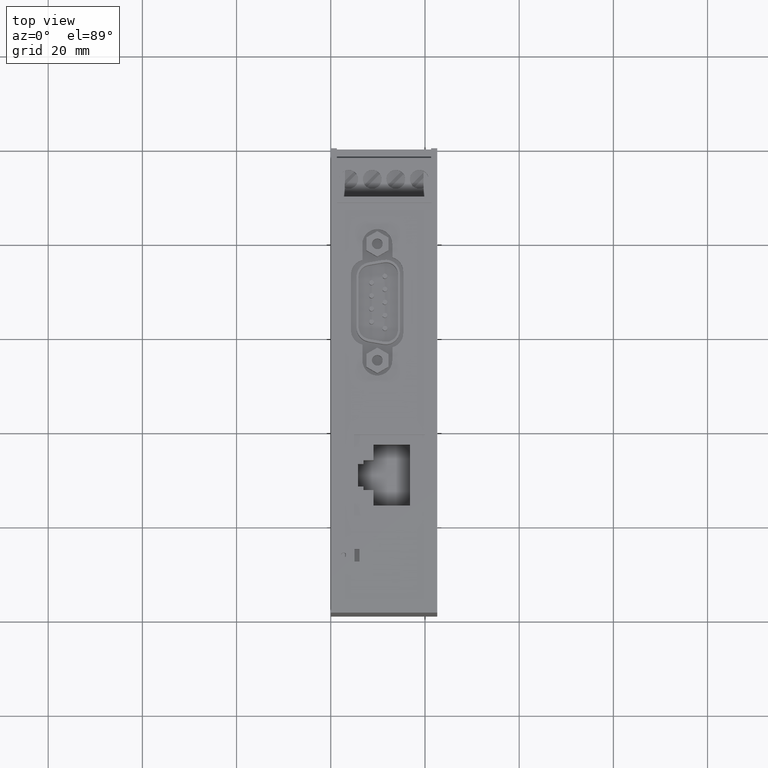
[diagram: clean part render]
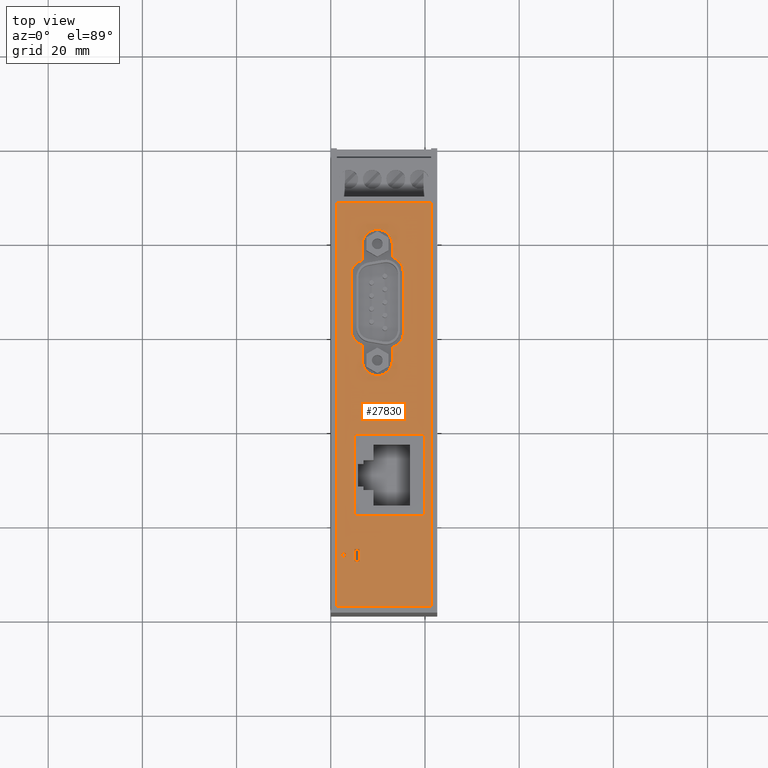
[diagram: same view with one face highlighted and labeled with its STEP entity id]
A machine part, top view. The second image highlights one B-rep face of the part: STEP entity #27830.
In plain terms, the highlighted planar face has unit normal (-0, 0, 1).
Its self-contained STEP definition (entity closure, byte-faithful):
#25570=CARTESIAN_POINT('',(-22.8499999999428,106.799999999976,11.3));
#25580=DIRECTION('',(7.38964445188328E-13,1.,-8.76330016597908E-25));
#25590=DIRECTION('',(1.,-7.38964445188328E-13,-0.));
#25600=AXIS2_PLACEMENT_3D('',#25570,#25580,#25590);
#25610=PLANE('',#25600);
#25620=CARTESIAN_POINT('',(24.,106.799999999941,4.91460000004642));
#25630=DIRECTION('',(1.,-7.38964445188328E-13,-0.));
#25640=VECTOR('',#25630,1.);
#25650=LINE('',#25620,#25640);
#25660=CARTESIAN_POINT('',(-46.415400000017,106.799999999993,
4.91460000004642));
#25670=VERTEX_POINT('',#25660);
#25680=CARTESIAN_POINT('',(-29.215400000017,106.799999999981,
4.91460000004642));
#25690=VERTEX_POINT('',#25680);
#25700=EDGE_CURVE('',#25670,#25690,#25650,.T.);
#25710=ORIENTED_EDGE('',*,*,#25700,.T.);
#25720=CARTESIAN_POINT('',(-46.415400000017,106.799999999993,0.));
#25730=DIRECTION('',(-6.47623918906154E-37,-8.76330016597908E-25,-1.));
#25740=VECTOR('',#25730,1.);
#25750=LINE('',#25720,#25740);
#25760=CARTESIAN_POINT('',(-46.415400000017,106.799999999993,
19.9146000000464));
#25770=VERTEX_POINT('',#25760);
#25780=EDGE_CURVE('',#25770,#25670,#25750,.T.);
#25790=ORIENTED_EDGE('',*,*,#25780,.T.);
#25800=CARTESIAN_POINT('',(24.,106.799999999941,19.9146000000464));
#25810=DIRECTION('',(-1.,7.38964445188328E-13,0.));
#25820=VECTOR('',#25810,1.);
#25830=LINE('',#25800,#25820);
#25840=CARTESIAN_POINT('',(-29.215400000017,106.799999999981,
19.9146000000464));
#25850=VERTEX_POINT('',#25840);
#25860=EDGE_CURVE('',#25850,#25770,#25830,.T.);
#25870=ORIENTED_EDGE('',*,*,#25860,.T.);
#25880=CARTESIAN_POINT('',(-29.215400000017,106.799999999981,0.));
#25890=DIRECTION('',(6.47623918906154E-37,8.76330016597908E-25,1.));
#25900=VECTOR('',#25890,1.);
#25910=LINE('',#25880,#25900);
#25920=EDGE_CURVE('',#25690,#25850,#25910,.T.);
#25930=ORIENTED_EDGE('',*,*,#25920,.T.);
#25940=EDGE_LOOP('',(#25930,#25870,#25790,#25710));
#25950=FACE_BOUND('',#25940,.T.);
#25960=CARTESIAN_POINT('',(-56.1333999999013,106.800000000001,0.));
#25970=DIRECTION('',(-6.62562871323012E-18,-8.76325120071037E-25,-1.));
#25980=VECTOR('',#25970,1.);
#25990=LINE('',#25960,#25980);
#26000=CARTESIAN_POINT('',(-56.1333999999013,106.800000000001,
6.05660000001346));
#26010=VERTEX_POINT('',#26000);
#26020=CARTESIAN_POINT('',(-56.1333999999013,106.800000000001,
5.05660000001347));
#26030=VERTEX_POINT('',#26020);
#26040=EDGE_CURVE('',#26010,#26030,#25990,.T.);
#26050=ORIENTED_EDGE('',*,*,#26040,.T.);
#26060=CARTESIAN_POINT('',(24.,106.799999999941,6.05660000001346));
#26070=DIRECTION('',(-1.,7.38964445188328E-13,6.62562860080833E-18));
#26080=VECTOR('',#26070,1.);
#26090=LINE('',#26060,#26080);
#26100=CARTESIAN_POINT('',(-53.5333999999013,106.799999999999,
6.05660000001346));
#26110=VERTEX_POINT('',#26100);
#26120=EDGE_CURVE('',#26110,#26010,#26090,.T.);
#26130=ORIENTED_EDGE('',*,*,#26120,.T.);
#26140=CARTESIAN_POINT('',(-53.5333999999013,106.799999999999,0.));
#26150=DIRECTION('',(6.62562871323012E-18,8.76325120071037E-25,1.));
#26160=VECTOR('',#26150,1.);
#26170=LINE('',#26140,#26160);
#26180=CARTESIAN_POINT('',(-53.5333999999013,106.799999999999,
5.05660000001347));
#26190=VERTEX_POINT('',#26180);
#26200=EDGE_CURVE('',#26190,#26110,#26170,.T.);
#26210=ORIENTED_EDGE('',*,*,#26200,.T.);
#26220=CARTESIAN_POINT('',(24.,106.799999999941,5.05660000001347));
#26230=DIRECTION('',(1.,-7.38964445188328E-13,-6.62562860080833E-18));
#26240=VECTOR('',#26230,1.);
#26250=LINE('',#26220,#26240);
#26260=EDGE_CURVE('',#26030,#26190,#26250,.T.);
#26270=ORIENTED_EDGE('',*,*,#26260,.T.);
#26280=EDGE_LOOP('',(#26270,#26210,#26130,#26050));
#26290=FACE_BOUND('',#26280,.T.);
#26300=CARTESIAN_POINT('',(24.,106.799999999941,6.69960000013016));
#26310=DIRECTION('',(1.,-7.38964445188328E-13,-0.));
#26320=VECTOR('',#26310,1.);
#26330=LINE('',#26300,#26320);
#26340=CARTESIAN_POINT('',(7.84833673789148,106.799999999953,
6.69960000013017));
#26350=VERTEX_POINT('',#26340);
#26360=CARTESIAN_POINT('',(11.2320000000061,106.799999999951,
6.69960000013016));
#26370=VERTEX_POINT('',#26360);
#26380=EDGE_CURVE('',#26350,#26370,#26330,.T.);
#26390=ORIENTED_EDGE('',*,*,#26380,.T.);
#26400=CARTESIAN_POINT('',(4.76219992162449,106.799999999956,
7.44551189256885));
#26410=DIRECTION('',(7.38964445188328E-13,1.,-8.76330016597908E-25));
#26420=DIRECTION('',(-1.,7.38964445188328E-13,-2.39016997792508E-40));
#26430=AXIS2_PLACEMENT_3D('',#26400,#26410,#26420);
#26440=CIRCLE('',#26430,3.175);
#26450=CARTESIAN_POINT('',(4.25060611806873,106.799999999956,
4.31200000011282));
#26460=VERTEX_POINT('',#26450);
#26470=EDGE_CURVE('',#26350,#26460,#26440,.T.);
#26480=ORIENTED_EDGE('',*,*,#26470,.F.);
#26490=CARTESIAN_POINT('',(24.,106.799999999941,4.31200000011282));
#26500=DIRECTION('',(1.,-7.38964445188328E-13,-0.));
#26510=VECTOR('',#26500,1.);
#26520=LINE('',#26490,#26510);
#26530=CARTESIAN_POINT('',(-6.52620614727227,106.799999999964,
4.31200000011282));
#26540=VERTEX_POINT('',#26530);
#26550=EDGE_CURVE('',#26540,#26460,#26520,.T.);
#26560=ORIENTED_EDGE('',*,*,#26550,.T.);
#26570=CARTESIAN_POINT('',(-7.03779993176679,106.799999999964,
7.44551189568088));
#26580=DIRECTION('',(7.38964445188328E-13,1.,-8.76330016597908E-25));
#26590=DIRECTION('',(-1.,7.38964445188328E-13,-2.39016997792508E-40));
#26600=AXIS2_PLACEMENT_3D('',#26570,#26580,#26590);
#26610=CIRCLE('',#26600,3.175);
#26620=CARTESIAN_POINT('',(-10.1239367472816,106.799999999967,
6.69960000013016));
#26630=VERTEX_POINT('',#26620);
#26640=EDGE_CURVE('',#26540,#26630,#26610,.T.);
#26650=ORIENTED_EDGE('',*,*,#26640,.F.);
#26660=CARTESIAN_POINT('',(24.,106.799999999941,6.69960000013016));
#26670=DIRECTION('',(1.,-7.38964445188328E-13,-0.));
#26680=VECTOR('',#26670,1.);
#26690=LINE('',#26660,#26680);
#26700=CARTESIAN_POINT('',(-13.5075999999939,106.799999999969,
6.69960000013016));
#26710=VERTEX_POINT('',#26700);
#26720=EDGE_CURVE('',#26710,#26630,#26690,.T.);
#26730=ORIENTED_EDGE('',*,*,#26720,.T.);
#26740=CARTESIAN_POINT('',(-13.5075999999939,106.799999999969,
9.87460000013017));
#26750=DIRECTION('',(7.38964445188328E-13,1.,-8.76330016597908E-25));
#26760=DIRECTION('',(-4.66293670342565E-15,-8.72884272163913E-25,-1.));
#26770=AXIS2_PLACEMENT_3D('',#26740,#26750,#26760);
#26780=CIRCLE('',#26770,3.175);
#26790=CARTESIAN_POINT('',(-13.5075999999939,106.799999999969,
13.0496000001302));
#26800=VERTEX_POINT('',#26790);
#26810=EDGE_CURVE('',#26710,#26800,#26780,.T.);
#26820=ORIENTED_EDGE('',*,*,#26810,.F.);
#26830=CARTESIAN_POINT('',(24.,106.799999999941,13.0496000001302));
#26840=DIRECTION('',(-1.,7.38964445188328E-13,0.));
#26850=VECTOR('',#26840,1.);
#26860=LINE('',#26830,#26850);
#26870=CARTESIAN_POINT('',(-10.7018259439431,106.799999999967,
13.0496000001302));
#26880=VERTEX_POINT('',#26870);
#26890=EDGE_CURVE('',#26880,#26800,#26860,.T.);
#26900=ORIENTED_EDGE('',*,*,#26890,.T.);
#26910=CARTESIAN_POINT('',(-7.63780009078459,106.799999999965,
12.2175119211528));
#26920=DIRECTION('',(7.38964445188328E-13,1.,-8.76330016597908E-25));
#26930=DIRECTION('',(-1.,7.38964445188328E-13,-2.390169977918E-40));
#26940=AXIS2_PLACEMENT_3D('',#26910,#26920,#26930);
#26950=CIRCLE('',#26940,3.175);
#26960=CARTESIAN_POINT('',(-7.63780009078645,106.799999999965,
15.3925119211528));
#26970=VERTEX_POINT('',#26960);
#26980=EDGE_CURVE('',#26880,#26970,#26950,.T.);
#26990=ORIENTED_EDGE('',*,*,#26980,.F.);
#27000=CARTESIAN_POINT('',(24.,106.799999999941,15.3925119211528));
#27010=DIRECTION('',(-1.,7.38964445188328E-13,0.));
#27020=VECTOR('',#27010,1.);
#27030=LINE('',#27000,#27020);
#27040=CARTESIAN_POINT('',(5.36220009098198,106.799999999955,
15.3925119211528));
#27050=VERTEX_POINT('',#27040);
#27060=EDGE_CURVE('',#27050,#26970,#27030,.T.);
#27070=ORIENTED_EDGE('',*,*,#27060,.T.);
#27080=CARTESIAN_POINT('',(5.36220009098198,106.799999999955,
12.2175119211528));
#27090=DIRECTION('',(7.38964445188328E-13,1.,-8.76330016597908E-25));
#27100=DIRECTION('',(-1.,7.38964445188328E-13,-2.39016997793215E-40));
#27110=AXIS2_PLACEMENT_3D('',#27080,#27090,#27100);
#27120=CIRCLE('',#27110,3.175);
#27130=CARTESIAN_POINT('',(8.42622594414051,106.799999999953,
13.0496000001302));
#27140=VERTEX_POINT('',#27130);
#27150=EDGE_CURVE('',#27050,#27140,#27120,.T.);
#27160=ORIENTED_EDGE('',*,*,#27150,.F.);
#27170=CARTESIAN_POINT('',(24.,106.799999999941,13.0496000001302));
#27180=DIRECTION('',(-1.,7.38964445188328E-13,0.));
#27190=VECTOR('',#27180,1.);
#27200=LINE('',#27170,#27190);
#27210=CARTESIAN_POINT('',(11.2320000000064,106.799999999951,
13.0496000001302));
#27220=VERTEX_POINT('',#27210);
#27230=EDGE_CURVE('',#27220,#27140,#27200,.T.);
#27240=ORIENTED_EDGE('',*,*,#27230,.T.);
#27250=CARTESIAN_POINT('',(11.2320000000061,106.799999999951,
9.87460000013017));
#27260=DIRECTION('',(7.38964445188328E-13,1.,-8.76330016597908E-25));
#27270=DIRECTION('',(7.105427357601E-15,8.71079358412773E-25,1.));
#27280=AXIS2_PLACEMENT_3D('',#27250,#27260,#27270);
#27290=CIRCLE('',#27280,3.175);
#27300=EDGE_CURVE('',#27220,#26370,#27290,.T.);
#27310=ORIENTED_EDGE('',*,*,#27300,.F.);
#27320=EDGE_LOOP('',(#27310,#27240,#27160,#27070,#26990,#26900,#26820,
#26730,#26650,#26560,#26480,#26390));
#27330=FACE_BOUND('',#27320,.T.);
#27340=CARTESIAN_POINT('',(-54.808000000017,106.8,2.71180000001566));
#27350=DIRECTION('',(7.38964445188328E-13,1.,-8.76330016597908E-25));
#27360=DIRECTION('',(-1.,7.38964445188328E-13,3.59138363842027E-39));
#27370=AXIS2_PLACEMENT_3D('',#27340,#27350,#27360);
#27380=CIRCLE('',#27370,0.54);
#27390=CARTESIAN_POINT('',(-55.348000000017,106.8,2.71180000001566));
#27400=VERTEX_POINT('',#27390);
#27410=CARTESIAN_POINT('',(-54.268000000017,106.799999999999,
2.71180000001566));
#27420=VERTEX_POINT('',#27410);
#27430=EDGE_CURVE('',#27400,#27420,#27380,.T.);
#27440=ORIENTED_EDGE('',*,*,#27430,.F.);
#27450=EDGE_CURVE('',#27420,#27400,#27380,.T.);
#27460=ORIENTED_EDGE('',*,*,#27450,.F.);
#27470=EDGE_LOOP('',(#27460,#27440));
#27480=FACE_BOUND('',#27470,.T.);
#27490=CARTESIAN_POINT('',(-65.7499999999784,106.800000000008,
21.3499999999959));
#27500=DIRECTION('',(-6.47576724517151E-37,-8.76330016597908E-25,-1.));
#27510=VECTOR('',#27500,1.);
#27520=LINE('',#27490,#27510);
#27530=CARTESIAN_POINT('',(-65.7499999999966,106.800000000008,
21.3499999999959));
#27540=VERTEX_POINT('',#27530);
#27550=CARTESIAN_POINT('',(-65.7499999999966,106.800000000008,
1.25000000015117));
#27560=VERTEX_POINT('',#27550);
#27570=EDGE_CURVE('',#27540,#27560,#27520,.T.);
#27580=ORIENTED_EDGE('',*,*,#27570,.F.);
#27590=CARTESIAN_POINT('',(-65.7499999999784,106.800000000008,
1.25000000015117));
#27600=DIRECTION('',(1.,-7.38964445188328E-13,2.32231206180843E-40));
#27610=VECTOR('',#27600,1.);
#27620=LINE('',#27590,#27610);
#27630=CARTESIAN_POINT('',(20.0499999999852,106.799999999944,
1.25000000015117));
#27640=VERTEX_POINT('',#27630);
#27650=EDGE_CURVE('',#27560,#27640,#27620,.T.);
#27660=ORIENTED_EDGE('',*,*,#27650,.F.);
#27670=CARTESIAN_POINT('',(20.0499999999852,106.799999999944,
1.25000000015117));
#27680=DIRECTION('',(6.47576724517151E-37,8.76330016597908E-25,1.));
#27690=VECTOR('',#27680,1.);
#27700=LINE('',#27670,#27690);
#27710=CARTESIAN_POINT('',(20.0499999999852,106.799999999944,
21.3499999999959));
#27720=VERTEX_POINT('',#27710);
#27730=EDGE_CURVE('',#27640,#27720,#27700,.T.);
#27740=ORIENTED_EDGE('',*,*,#27730,.F.);
#27750=CARTESIAN_POINT('',(20.0499999999852,106.799999999944,
21.3499999999959));
#27760=DIRECTION('',(-1.,7.38964445188328E-13,-2.32231206180843E-40));
#27770=VECTOR('',#27760,1.);
#27780=LINE('',#27750,#27770);
#27790=EDGE_CURVE('',#27720,#27540,#27780,.T.);
#27800=ORIENTED_EDGE('',*,*,#27790,.F.);
#27810=EDGE_LOOP('',(#27800,#27740,#27660,#27580));
#27820=FACE_OUTER_BOUND('',#27810,.T.);
#27830=ADVANCED_FACE('',(#25950,#26290,#27330,#27480,#27820),#25610,.T.)
;